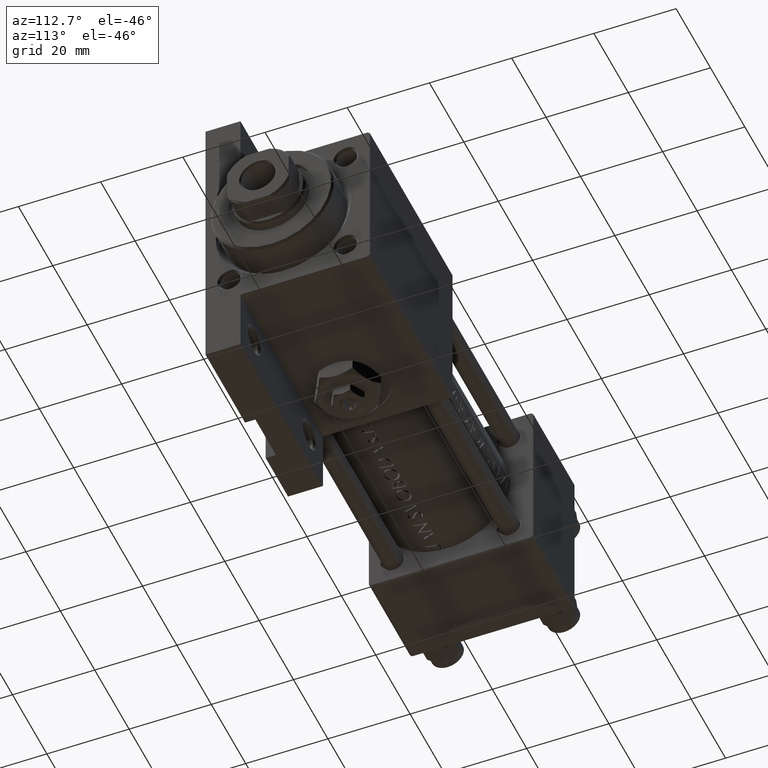
[diagram: clean part render]
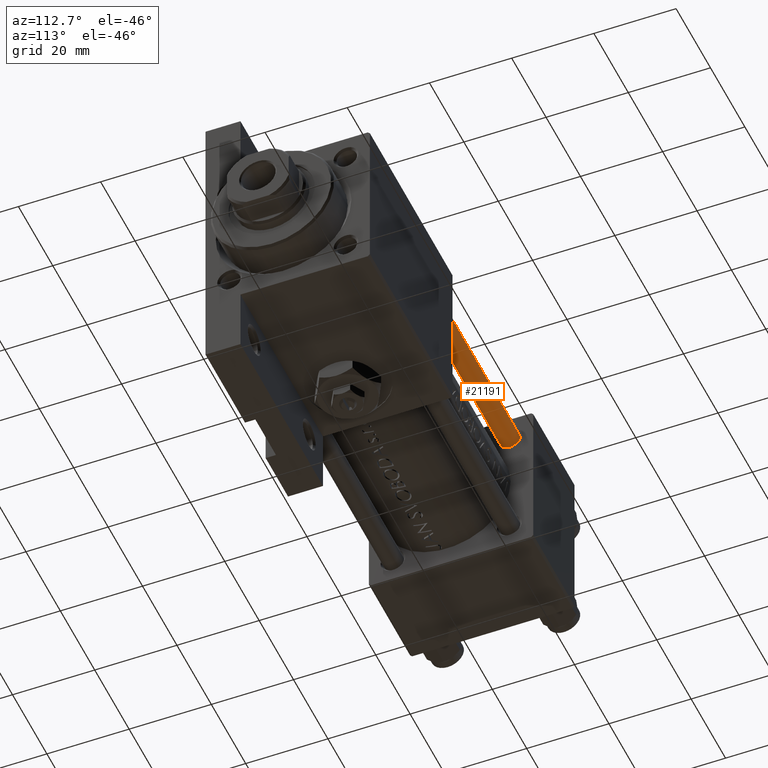
[diagram: same view with one face highlighted and labeled with its STEP entity id]
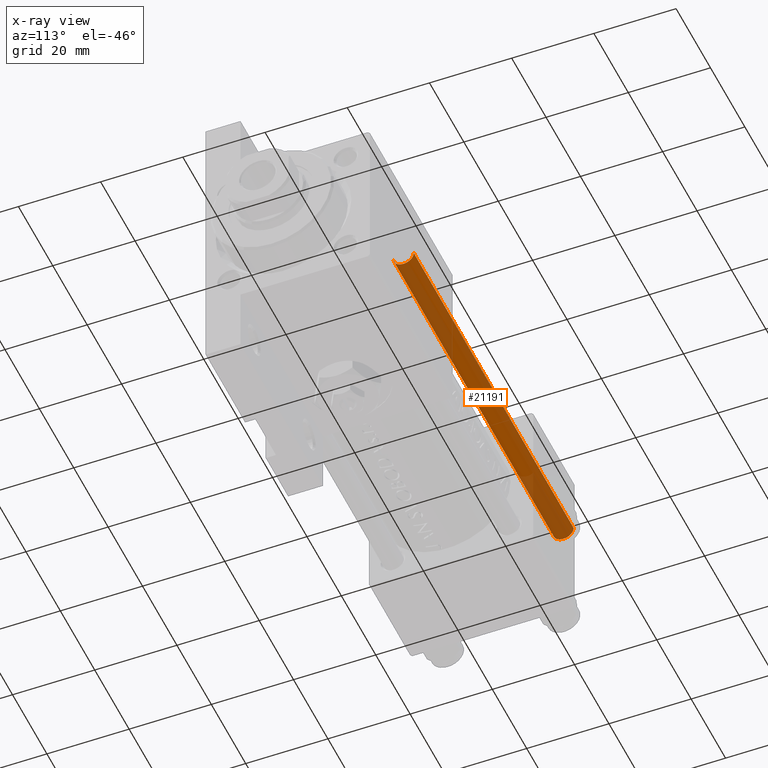
[diagram: x-ray of the same camera — body ghosted, the highlighted face saturated]
A machine part, auxiliary view. The second image highlights one B-rep face of the part: STEP entity #21191.
The next image is the same camera in x-ray: the body ghosted, the highlighted face saturated — about 33% of this face is hidden behind the body in this view.
In plain terms, the highlighted cylindrical surface (edge-blend (fillet) strip) has radius 2.5 mm, axis along (1, -0, 0).
Its self-contained STEP definition (entity closure, byte-faithful):
#1729 = CARTESIAN_POINT ( 'NONE',  ( -2.500000000000000000, 0.000000000000000000, 93.50000000000001421 ) ) ;
#4578 = LINE ( 'NONE', #11814, #36462 ) ;
#5935 = EDGE_CURVE ( 'NONE', #37119, #45617, #48778, .T. ) ;
#8311 = DIRECTION ( 'NONE',  ( -0.000000000000000000, -0.000000000000000000, -1.000000000000000000 ) ) ;
#8719 = DIRECTION ( 'NONE',  ( -0.000000000000000000, -0.000000000000000000, -1.000000000000000000 ) ) ;
#9221 = LINE ( 'NONE', #32634, #45881 ) ;
#9645 = DIRECTION ( 'NONE',  ( 1.000000000000000000, 0.000000000000000000, 0.000000000000000000 ) ) ;
#10865 = VERTEX_POINT ( 'NONE', #1729 ) ;
#11730 = ORIENTED_EDGE ( 'NONE', *, *, #26426, .T. ) ;
#11814 = CARTESIAN_POINT ( 'NONE',  ( -2.500000000000000000, 0.000000000000000000, 94.00000000000000000 ) ) ;
#12462 = FACE_OUTER_BOUND ( 'NONE', #48590, .T. ) ;
#13963 = AXIS2_PLACEMENT_3D ( 'NONE', #37060, #44289, #9645 ) ;
#14309 = DIRECTION ( 'NONE',  ( 1.000000000000000000, 0.000000000000000000, 0.000000000000000000 ) ) ;
#15662 = ORIENTED_EDGE ( 'NONE', *, *, #17840, .T. ) ;
#16148 = AXIS2_PLACEMENT_3D ( 'NONE', #23137, #36514, #14309 ) ;
#17019 = CARTESIAN_POINT ( 'NONE',  ( 2.500000000000000000, 3.061616997868383141E-16, 0.5000000000000004441 ) ) ;
#17840 = EDGE_CURVE ( 'NONE', #18533, #37119, #9221, .T. ) ;
#18533 = VERTEX_POINT ( 'NONE', #24754 ) ;
#19693 = CYLINDRICAL_SURFACE ( 'NONE', #44385, 2.500000000000000000 ) ;
#21191 = ADVANCED_FACE ( 'NONE', ( #12462 ), #19693, .T. ) ;
#23137 = CARTESIAN_POINT ( 'NONE',  ( 0.000000000000000000, 0.000000000000000000, 0.5000000000000004441 ) ) ;
#23919 = DIRECTION ( 'NONE',  ( -1.000000000000000000, 0.000000000000000000, 0.000000000000000000 ) ) ;
#24412 = DIRECTION ( 'NONE',  ( -0.000000000000000000, -0.000000000000000000, -1.000000000000000000 ) ) ;
#24754 = CARTESIAN_POINT ( 'NONE',  ( 2.500000000000000000, 3.061616997868383141E-16, 93.50000000000001421 ) ) ;
#26426 = EDGE_CURVE ( 'NONE', #10865, #18533, #35467, .T. ) ;
#30776 = ORIENTED_EDGE ( 'NONE', *, *, #5935, .T. ) ;
#31644 = CARTESIAN_POINT ( 'NONE',  ( 0.000000000000000000, 0.000000000000000000, 94.00000000000000000 ) ) ;
#32634 = CARTESIAN_POINT ( 'NONE',  ( 2.500000000000000000, 3.061616997868383141E-16, 94.00000000000000000 ) ) ;
#34819 = EDGE_CURVE ( 'NONE', #10865, #45617, #4578, .T. ) ;
#35467 = CIRCLE ( 'NONE', #13963, 2.500000000000000000 ) ;
#36462 = VECTOR ( 'NONE', #8311, 1000.000000000000000 ) ;
#36514 = DIRECTION ( 'NONE',  ( -0.000000000000000000, -0.000000000000000000, 1.000000000000000000 ) ) ;
#37060 = CARTESIAN_POINT ( 'NONE',  ( 0.000000000000000000, 0.000000000000000000, 93.50000000000001421 ) ) ;
#37119 = VERTEX_POINT ( 'NONE', #17019 ) ;
#41942 = CARTESIAN_POINT ( 'NONE',  ( -2.500000000000000000, 0.000000000000000000, 0.5000000000000004441 ) ) ;
#44289 = DIRECTION ( 'NONE',  ( 0.000000000000000000, 0.000000000000000000, -1.000000000000000000 ) ) ;
#44385 = AXIS2_PLACEMENT_3D ( 'NONE', #31644, #8719, #23919 ) ;
#45617 = VERTEX_POINT ( 'NONE', #41942 ) ;
#45881 = VECTOR ( 'NONE', #24412, 1000.000000000000000 ) ;
#48009 = ORIENTED_EDGE ( 'NONE', *, *, #34819, .F. ) ;
#48590 = EDGE_LOOP ( 'NONE', ( #11730, #15662, #30776, #48009 ) ) ;
#48778 = CIRCLE ( 'NONE', #16148, 2.500000000000000000 ) ;